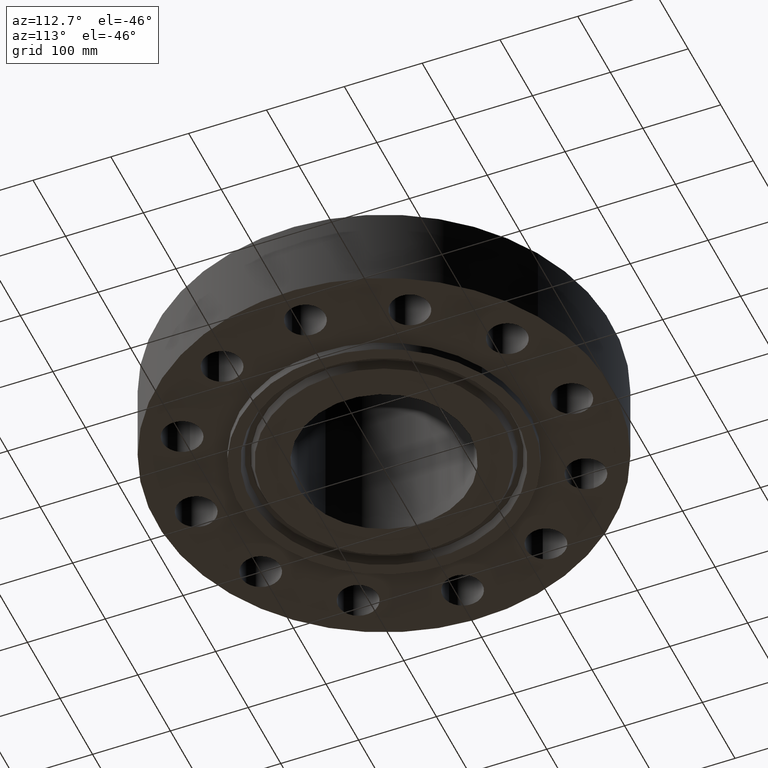
[diagram: clean part render]
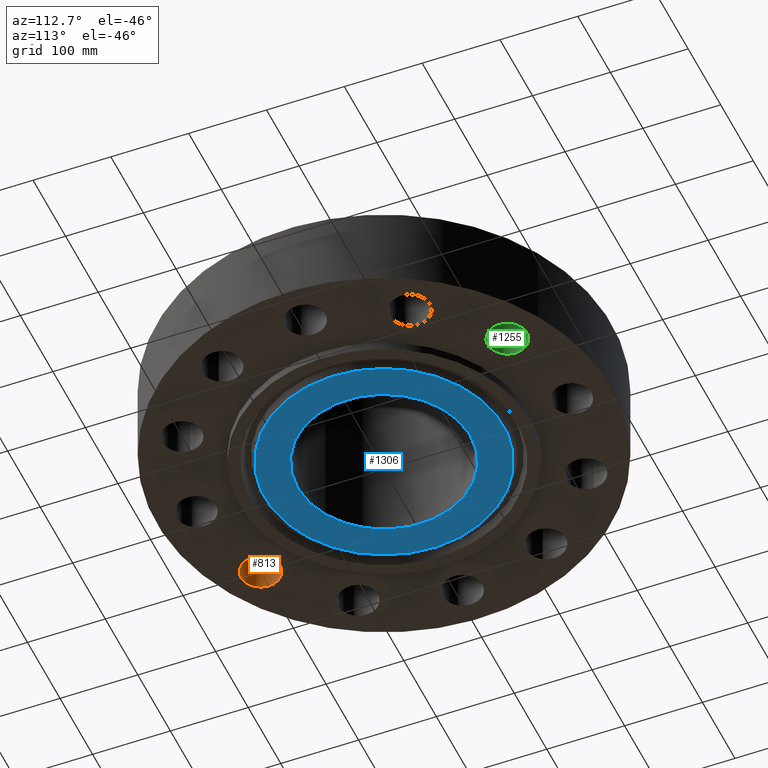
[diagram: same view with three faces highlighted in distinct colors, each labeled with its STEP entity id]
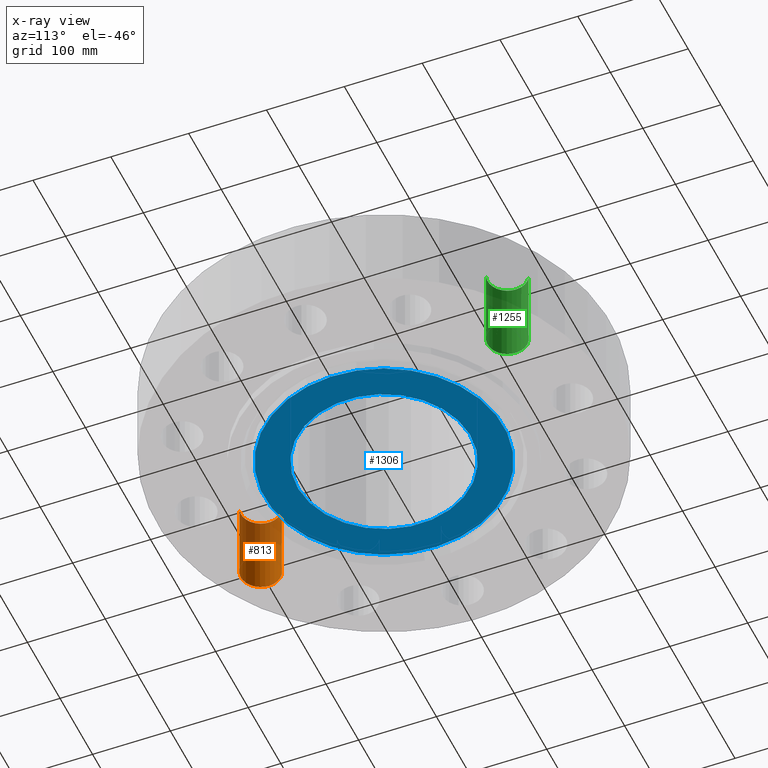
[diagram: x-ray of the same camera — body ghosted, the three highlighted faces saturated]
A machine part, auxiliary view with three faces highlighted in distinct colors.
The next image is the same camera in x-ray (body ghosted, the three faces saturated) — at least one of them is partly hidden behind the body in this view.
Their STEP definitions:

[orange] entity #813 — the highlighted cylindrical surface (edge-blend (fillet) strip) has radius 25.4 mm, axis along (0, 0, -1).
#694=AXIS2_PLACEMENT_3D('Circle Axis2P3D',#692,#693,$) ;
#786=AXIS2_PLACEMENT_3D('Cylinder Axis2P3D',#783,#784,#785) ;
#804=AXIS2_PLACEMENT_3D('Circle Axis2P3D',#802,#803,$) ;
#692=CARTESIAN_POINT('Axis2P3D Location',(-4.75000000002,-8.22724133599,0.)) ;
#696=CARTESIAN_POINT('Vertex',(-4.2297039768,-9.08122731259,0.)) ;
#698=CARTESIAN_POINT('Vertex',(-5.27029602323,-7.37325535938,0.)) ;
#783=CARTESIAN_POINT('Axis2P3D Location',(-4.75000000002,-8.22724133599,4.24606299214)) ;
#788=CARTESIAN_POINT('Line Origine',(-4.2297039768,-9.08122731259,2.12500000001)) ;
#792=CARTESIAN_POINT('Vertex',(-4.2297039768,-9.08122731259,4.25000000002)) ;
#795=CARTESIAN_POINT('Line Origine',(-5.27029602323,-7.37325535938,2.12500000001)) ;
#799=CARTESIAN_POINT('Vertex',(-5.27029602323,-7.37325535938,4.25000000002)) ;
#802=CARTESIAN_POINT('Axis2P3D Location',(-4.75000000002,-8.22724133599,4.25000000002)) ;
#693=DIRECTION('Axis2P3D Direction',(0.,0.,-0.0393700787402)) ;
#784=DIRECTION('Axis2P3D Direction',(0.,0.,-0.0393700787402)) ;
#785=DIRECTION('Axis2P3D XDirection',(-0.0204840954021,0.0336214951417,0.)) ;
#789=DIRECTION('Vector Direction',(0.,0.,-0.0393700787402)) ;
#796=DIRECTION('Vector Direction',(0.,0.,-0.0393700787402)) ;
#803=DIRECTION('Axis2P3D Direction',(0.,0.,-0.0393700787402)) ;
#790=VECTOR('Line Direction',#789,0.0393700787402) ;
#797=VECTOR('Line Direction',#796,0.0393700787402) ;
#808=ORIENTED_EDGE('',*,*,#794,.F.) ;
#809=ORIENTED_EDGE('',*,*,#700,.T.) ;
#810=ORIENTED_EDGE('',*,*,#801,.T.) ;
#811=ORIENTED_EDGE('',*,*,#806,.F.) ;
#813=ADVANCED_FACE('PartBody',(#812),#787,.F.) ;
#695=CIRCLE('generated circle',#694,1.) ;
#805=CIRCLE('generated circle',#804,1.) ;
#787=CYLINDRICAL_SURFACE('generated cylinder',#786,1.) ;
#700=EDGE_CURVE('',#697,#699,#695,.T.) ;
#794=EDGE_CURVE('',#697,#793,#791,.F.) ;
#801=EDGE_CURVE('',#699,#800,#798,.F.) ;
#806=EDGE_CURVE('',#793,#800,#805,.T.) ;
#807=EDGE_LOOP('',(#808,#809,#810,#811)) ;
#812=FACE_OUTER_BOUND('',#807,.T.) ;
#791=LINE('Line',#788,#790) ;
#798=LINE('Line',#795,#797) ;
#697=VERTEX_POINT('',#696) ;
#699=VERTEX_POINT('',#698) ;
#793=VERTEX_POINT('',#792) ;
#800=VERTEX_POINT('',#799) ;

[blue] entity #1306 — the highlighted planar face has unit normal (0, 0, -1).
#427=AXIS2_PLACEMENT_3D('Circle Axis2P3D',#425,#426,$) ;
#446=AXIS2_PLACEMENT_3D('Circle Axis2P3D',#444,#445,$) ;
#1259=AXIS2_PLACEMENT_3D('Plane Axis2P3D',#1256,#1257,#1258) ;
#1286=AXIS2_PLACEMENT_3D('Circle Axis2P3D',#1284,#1285,$) ;
#1295=AXIS2_PLACEMENT_3D('Circle Axis2P3D',#1293,#1294,$) ;
#422=CARTESIAN_POINT('Vertex',(-2.0974867314,-3.83942370829,-0.438000000002)) ;
#425=CARTESIAN_POINT('Axis2P3D Location',(0.,0.,-0.438000000002)) ;
#429=CARTESIAN_POINT('Vertex',(2.0974867314,3.83942370829,-0.438000000002)) ;
#444=CARTESIAN_POINT('Axis2P3D Location',(0.,0.,-0.438000000002)) ;
#1256=CARTESIAN_POINT('Axis2P3D Location',(0.,4.37500000002,-0.438000000002)) ;
#1284=CARTESIAN_POINT('Axis2P3D Location',(-1.67844740731E-015,0.,-0.438000000002)) ;
#1288=CARTESIAN_POINT('Vertex',(-2.89908623195,5.30674175177,-0.438000000002)) ;
#1290=CARTESIAN_POINT('Vertex',(2.89908623195,-5.30674175177,-0.438000000002)) ;
#1293=CARTESIAN_POINT('Axis2P3D Location',(-1.1189649382E-015,0.,-0.438000000002)) ;
#426=DIRECTION('Axis2P3D Direction',(0.,0.,-0.0393700787402)) ;
#445=DIRECTION('Axis2P3D Direction',(0.,0.,-0.0393700787402)) ;
#1257=DIRECTION('Axis2P3D Direction',(0.,0.,-0.0393700787402)) ;
#1258=DIRECTION('Axis2P3D XDirection',(0.0393700787402,0.,0.)) ;
#1285=DIRECTION('Axis2P3D Direction',(0.,0.,-0.0393700787402)) ;
#1294=DIRECTION('Axis2P3D Direction',(0.,0.,-0.0393700787402)) ;
#1299=ORIENTED_EDGE('',*,*,#1292,.T.) ;
#1300=ORIENTED_EDGE('',*,*,#1297,.T.) ;
#1303=ORIENTED_EDGE('',*,*,#448,.F.) ;
#1304=ORIENTED_EDGE('',*,*,#431,.F.) ;
#1305=FACE_BOUND('',#1302,.T.) ;
#1306=ADVANCED_FACE('PartBody',(#1301,#1305),#1260,.T.) ;
#428=CIRCLE('generated circle',#427,4.37500000002) ;
#447=CIRCLE('generated circle',#446,4.37500000002) ;
#1287=CIRCLE('generated circle',#1286,6.04700000002) ;
#1296=CIRCLE('generated circle',#1295,6.04700000002) ;
#431=EDGE_CURVE('',#423,#430,#428,.T.) ;
#448=EDGE_CURVE('',#430,#423,#447,.T.) ;
#1292=EDGE_CURVE('',#1289,#1291,#1287,.T.) ;
#1297=EDGE_CURVE('',#1291,#1289,#1296,.T.) ;
#1298=EDGE_LOOP('',(#1299,#1300)) ;
#1302=EDGE_LOOP('',(#1303,#1304)) ;
#1301=FACE_OUTER_BOUND('',#1298,.T.) ;
#1260=PLANE('',#1259) ;
#423=VERTEX_POINT('',#422) ;
#430=VERTEX_POINT('',#429) ;
#1289=VERTEX_POINT('',#1288) ;
#1291=VERTEX_POINT('',#1290) ;

[green] entity #1255 — the highlighted cylindrical surface (edge-blend (fillet) strip) has radius 25.4 mm, axis along (0, -0, -1).
#595=AXIS2_PLACEMENT_3D('Circle Axis2P3D',#593,#594,$) ;
#1216=AXIS2_PLACEMENT_3D('Cylinder Axis2P3D',#1213,#1214,#1215) ;
#1246=AXIS2_PLACEMENT_3D('Circle Axis2P3D',#1244,#1245,$) ;
#588=CARTESIAN_POINT('Vertex',(4.2297039768,9.08122731259,0.)) ;
#590=CARTESIAN_POINT('Vertex',(5.27029602323,7.37325535938,0.)) ;
#593=CARTESIAN_POINT('Axis2P3D Location',(4.75000000002,8.22724133599,0.)) ;
#1213=CARTESIAN_POINT('Axis2P3D Location',(4.75000000002,8.22724133599,4.24606299214)) ;
#1218=CARTESIAN_POINT('Line Origine',(4.2297039768,9.08122731259,2.12500000001)) ;
#1222=CARTESIAN_POINT('Vertex',(4.2297039768,9.08122731259,4.25000000002)) ;
#1225=CARTESIAN_POINT('Line Origine',(5.27029602323,7.37325535938,2.12500000001)) ;
#1229=CARTESIAN_POINT('Vertex',(5.27029602323,7.37325535938,4.25000000002)) ;
#1244=CARTESIAN_POINT('Axis2P3D Location',(4.75000000002,8.22724133599,4.25000000002)) ;
#594=DIRECTION('Axis2P3D Direction',(0.,0.,-0.0393700787402)) ;
#1214=DIRECTION('Axis2P3D Direction',(0.,-0.,-0.0393700787402)) ;
#1215=DIRECTION('Axis2P3D XDirection',(0.0204840954021,-0.0336214951417,0.)) ;
#1219=DIRECTION('Vector Direction',(0.,0.,-0.0393700787402)) ;
#1226=DIRECTION('Vector Direction',(0.,0.,-0.0393700787402)) ;
#1245=DIRECTION('Axis2P3D Direction',(0.,-0.,-0.0393700787402)) ;
#1220=VECTOR('Line Direction',#1219,0.0393700787402) ;
#1227=VECTOR('Line Direction',#1226,0.0393700787402) ;
#1250=ORIENTED_EDGE('',*,*,#1231,.F.) ;
#1251=ORIENTED_EDGE('',*,*,#597,.T.) ;
#1252=ORIENTED_EDGE('',*,*,#1224,.T.) ;
#1253=ORIENTED_EDGE('',*,*,#1248,.F.) ;
#1255=ADVANCED_FACE('PartBody',(#1254),#1217,.F.) ;
#596=CIRCLE('generated circle',#595,1.) ;
#1247=CIRCLE('generated circle',#1246,1.) ;
#1217=CYLINDRICAL_SURFACE('generated cylinder',#1216,1.) ;
#597=EDGE_CURVE('',#591,#589,#596,.T.) ;
#1224=EDGE_CURVE('',#589,#1223,#1221,.F.) ;
#1231=EDGE_CURVE('',#591,#1230,#1228,.F.) ;
#1248=EDGE_CURVE('',#1230,#1223,#1247,.T.) ;
#1249=EDGE_LOOP('',(#1250,#1251,#1252,#1253)) ;
#1254=FACE_OUTER_BOUND('',#1249,.T.) ;
#1221=LINE('Line',#1218,#1220) ;
#1228=LINE('Line',#1225,#1227) ;
#589=VERTEX_POINT('',#588) ;
#591=VERTEX_POINT('',#590) ;
#1223=VERTEX_POINT('',#1222) ;
#1230=VERTEX_POINT('',#1229) ;